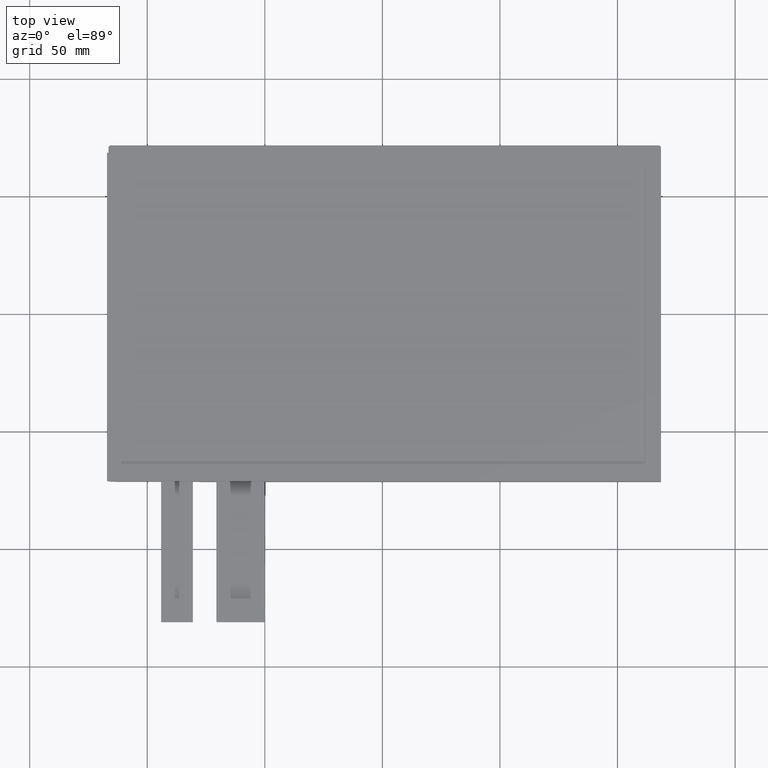
[diagram: clean part render]
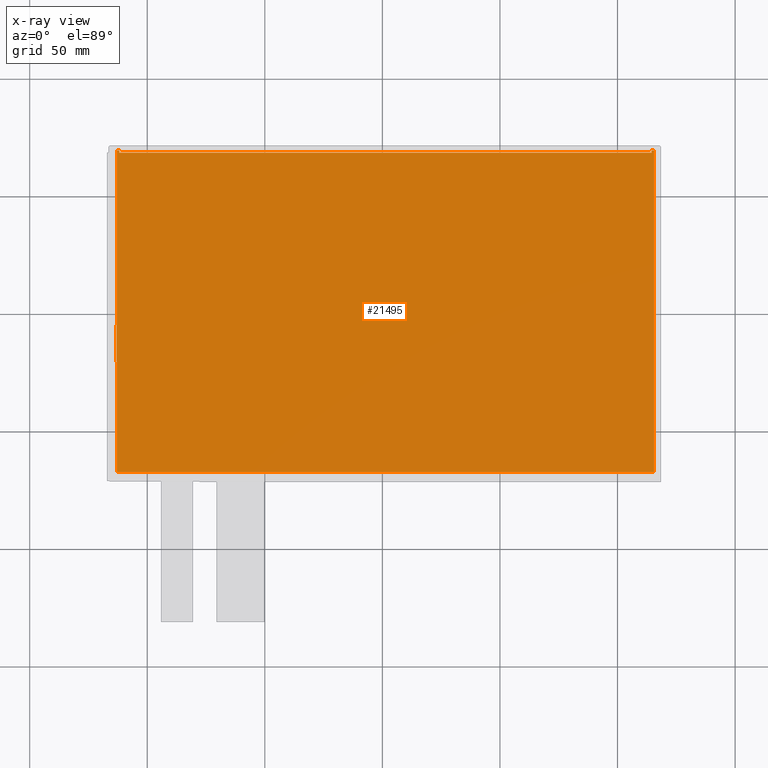
[diagram: x-ray — body ghosted, one internal face saturated and labeled with its STEP entity id]
A machine part, top view, then the same camera in x-ray: the body is ghosted and one INTERNAL B-rep face — a face not visible from any outside direction — is saturated and labeled: STEP entity #21495.
In plain terms, the highlighted planar face has unit normal (-0, -0.001, 1).
Its self-contained STEP definition (entity closure, byte-faithful):
#1334=FACE_OUTER_BOUND('',#2476,.T.);
#2476=EDGE_LOOP('',(#18484,#18485,#18486,#18487,#18488,#18489,#18490,#18491,
#18492,#18493,#18494,#18495));
#4207=LINE('',#32037,#7041);
#4223=LINE('',#32070,#7057);
#4783=LINE('',#33343,#7617);
#4790=LINE('',#33358,#7624);
#5052=LINE('',#33969,#7886);
#5053=LINE('',#33971,#7887);
#5054=LINE('',#33973,#7888);
#5055=LINE('',#33975,#7889);
#5056=LINE('',#33977,#7890);
#5057=LINE('',#33979,#7891);
#5058=LINE('',#33980,#7892);
#5059=LINE('',#33981,#7893);
#7041=VECTOR('',#25805,10.);
#7057=VECTOR('',#25827,10.);
#7617=VECTOR('',#26969,10.);
#7624=VECTOR('',#26990,10.);
#7886=VECTOR('',#27510,10.);
#7887=VECTOR('',#27511,10.);
#7888=VECTOR('',#27512,10.);
#7889=VECTOR('',#27513,10.);
#7890=VECTOR('',#27514,10.);
#7891=VECTOR('',#27515,10.);
#7892=VECTOR('',#27516,10.);
#7893=VECTOR('',#27517,10.);
#9482=VERTEX_POINT('',#32035);
#9483=VERTEX_POINT('',#32036);
#9497=VERTEX_POINT('',#32068);
#9917=VERTEX_POINT('',#33337);
#9919=VERTEX_POINT('',#33341);
#9920=VERTEX_POINT('',#33357);
#10096=VERTEX_POINT('',#33968);
#10097=VERTEX_POINT('',#33970);
#10098=VERTEX_POINT('',#33972);
#10099=VERTEX_POINT('',#33974);
#10100=VERTEX_POINT('',#33976);
#10101=VERTEX_POINT('',#33978);
#12023=EDGE_CURVE('',#9482,#9483,#4207,.T.);
#12040=EDGE_CURVE('',#9483,#9497,#4223,.T.);
#12679=EDGE_CURVE('',#9917,#9919,#4783,.T.);
#12686=EDGE_CURVE('',#9919,#9920,#4790,.T.);
#12970=EDGE_CURVE('',#10096,#9920,#5052,.T.);
#12971=EDGE_CURVE('',#10097,#10096,#5053,.T.);
#12972=EDGE_CURVE('',#10097,#10098,#5054,.T.);
#12973=EDGE_CURVE('',#10098,#10099,#5055,.T.);
#12974=EDGE_CURVE('',#10100,#10099,#5056,.T.);
#12975=EDGE_CURVE('',#10100,#10101,#5057,.T.);
#12976=EDGE_CURVE('',#10101,#9482,#5058,.T.);
#12977=EDGE_CURVE('',#9917,#9497,#5059,.T.);
#18484=ORIENTED_EDGE('',*,*,#12679,.T.);
#18485=ORIENTED_EDGE('',*,*,#12686,.T.);
#18486=ORIENTED_EDGE('',*,*,#12970,.F.);
#18487=ORIENTED_EDGE('',*,*,#12971,.F.);
#18488=ORIENTED_EDGE('',*,*,#12972,.T.);
#18489=ORIENTED_EDGE('',*,*,#12973,.T.);
#18490=ORIENTED_EDGE('',*,*,#12974,.F.);
#18491=ORIENTED_EDGE('',*,*,#12975,.T.);
#18492=ORIENTED_EDGE('',*,*,#12976,.T.);
#18493=ORIENTED_EDGE('',*,*,#12023,.T.);
#18494=ORIENTED_EDGE('',*,*,#12040,.T.);
#18495=ORIENTED_EDGE('',*,*,#12977,.F.);
#20424=PLANE('',#22811);
#21495=ADVANCED_FACE('',(#1334),#20424,.T.);
#22811=AXIS2_PLACEMENT_3D('',#33967,#27508,#27509);
#25805=DIRECTION('',(-4.98483492944252E-16,-0.999999469350118,-0.00103019390550002));
#25827=DIRECTION('',(-1.,7.8351592281471E-15,7.55820236728779E-18));
#26969=DIRECTION('',(1.,-1.29300492432034E-14,-1.28069297952283E-17));
#26990=DIRECTION('',(-4.98483492944252E-16,-0.999999469350118,-0.00103019390550002));
#27508=DIRECTION('center_axis',(-5.1353492893078E-19,-0.00103019390550002,
0.999999469350118));
#27509=DIRECTION('ref_axis',(1.,-4.984837574646E-16,-5.57384943346501E-35));
#27510=DIRECTION('',(-1.,4.984837574646E-16,5.57384943346501E-35));
#27511=DIRECTION('',(-4.98483492944252E-16,-0.999999469350118,-0.00103019390550002));
#27512=DIRECTION('',(-1.,4.984837574646E-16,5.57384943346501E-35));
#27513=DIRECTION('',(-4.98483492944252E-16,-0.999999469350118,-0.00103019390549879));
#27514=DIRECTION('',(1.,-4.984837574646E-16,-5.57384943346501E-35));
#27515=DIRECTION('',(4.98483492944253E-16,0.999999469350118,0.00103019390550349));
#27516=DIRECTION('',(-1.,-9.03814859308904E-13,-4.99142631218561E-15));
#27517=DIRECTION('',(4.98483492944252E-16,0.999999469350118,0.00103019390550002));
#32035=CARTESIAN_POINT('',(-112.96,69.5799076261886,-5.86899687066608));
#32036=CARTESIAN_POINT('',(-112.96,-4.63999999999342,-5.94545780774333));
#32037=CARTESIAN_POINT('',(-112.96,-30.2362448098017,-5.97182691714285));
#32068=CARTESIAN_POINT('',(-113.,-4.63999999999343,-5.94545780774333));
#32070=CARTESIAN_POINT('',(5.21280717412721,-4.63999999999436,-5.94545780774334));
#33337=CARTESIAN_POINT('',(-113.,-20.2399999999934,-5.96152884119723));
#33341=CARTESIAN_POINT('',(-112.96,-20.2399999999934,-5.96152884119723));
#33343=CARTESIAN_POINT('',(2.4966319999986,-20.2399999999949,-5.96152884119723));
#33357=CARTESIAN_POINT('',(-112.96,-67.2860593727256,-6.0099954305596));
#33358=CARTESIAN_POINT('',(-112.96,-30.2362448098017,-5.97182691714285));
#33967=CARTESIAN_POINT('Origin',(118.173264,2.0134021850231,-5.93860350972426));
#33968=CARTESIAN_POINT('',(115.5,-67.2860593727257,-6.0099954305596));
#33969=CARTESIAN_POINT('',(115.5,-67.2860593727257,-6.0099954305596));
#33970=CARTESIAN_POINT('',(115.5,69.5799076261885,-5.86899687066608));
#33971=CARTESIAN_POINT('',(115.5,69.5799076261885,-5.86899687066608));
#33972=CARTESIAN_POINT('',(114.5,69.5799076261885,-5.86899687066608));
#33973=CARTESIAN_POINT('',(115.5,69.5799076261885,-5.86899687066608));
#33974=CARTESIAN_POINT('',(114.5,68.6299081303063,-5.8699755548763));
#33975=CARTESIAN_POINT('',(114.5,69.5799076261885,-5.86899687066608));
#33976=CARTESIAN_POINT('',(-111.9,68.6299081303064,-5.8699755548763));
#33977=CARTESIAN_POINT('',(-111.9,68.6299081303064,-5.8699755548763));
#33978=CARTESIAN_POINT('',(-111.9,69.5799076261896,-5.86899687066607));
#33979=CARTESIAN_POINT('',(-111.9,68.6299081303064,-5.8699755548763));
#33980=CARTESIAN_POINT('',(-111.9,69.5799076261896,-5.86899687066607));
#33981=CARTESIAN_POINT('',(-113.,-67.2860593727256,-6.0099954305596));